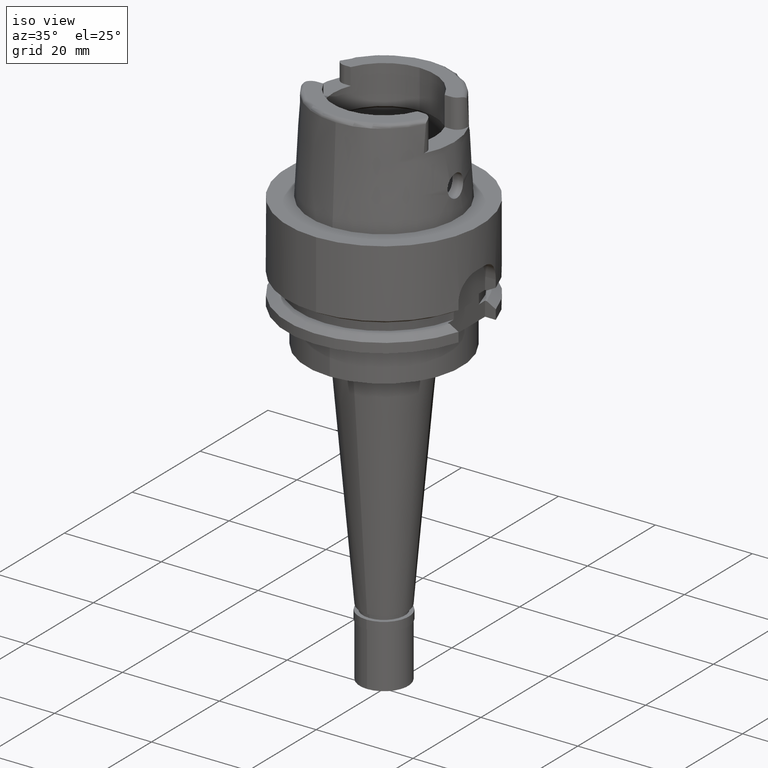
[diagram: clean part render]
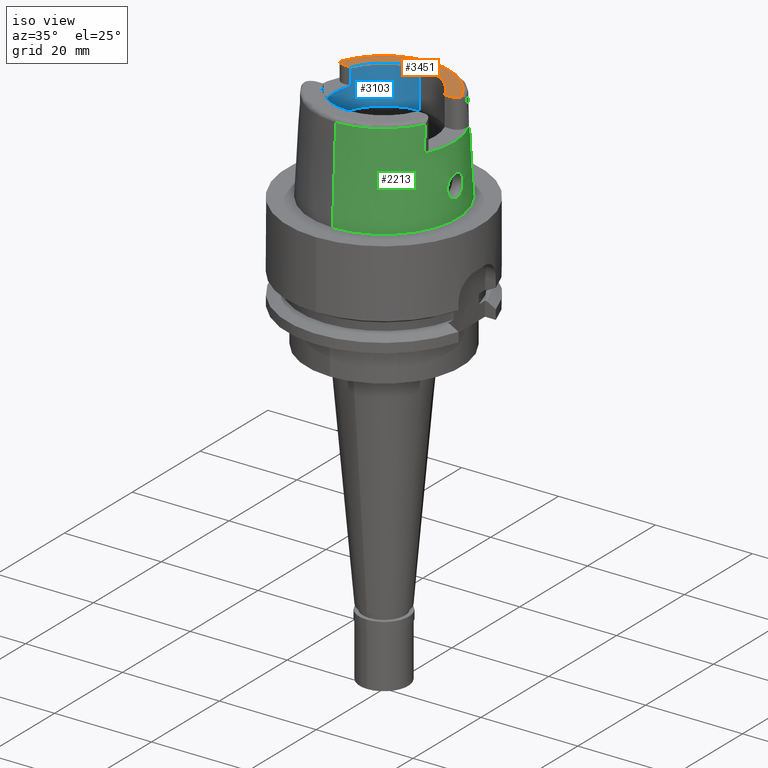
[diagram: same view with three faces highlighted in distinct colors, each labeled with its STEP entity id]
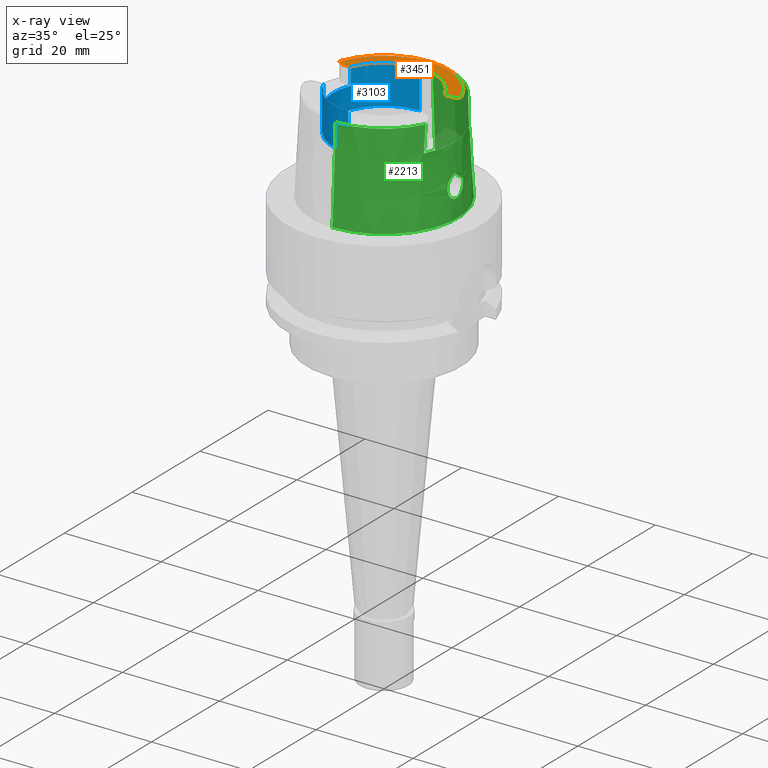
[diagram: x-ray of the same camera — body ghosted, the three highlighted faces saturated]
A machine part, iso view with three faces highlighted in distinct colors.
The next image is the same camera in x-ray (body ghosted, the three faces saturated) — at least one of them is partly hidden behind the body in this view.
Their STEP definitions:

[orange] entity #3451 — the highlighted planar face has unit normal (0, 0, -1).
#23 = CARTESIAN_POINT ( 'NONE',  ( 0.0000000000000000000, 1.534666136351999886E-14, 20.00000000000000000 ) ) ;
#116 = DIRECTION ( 'NONE',  ( 0.0000000000000000000, 0.0000000000000000000, -1.000000000000000000 ) ) ;
#144 = AXIS2_PLACEMENT_3D ( 'NONE', #2145, #5063, #1798 ) ;
#202 = DIRECTION ( 'NONE',  ( 0.0000000000000000000, 0.0000000000000000000, -1.000000000000000000 ) ) ;
#339 = CARTESIAN_POINT ( 'NONE',  ( 11.00000000000000000, 5.904999999999999361, 20.00000000000000000 ) ) ;
#360 = VERTEX_POINT ( 'NONE', #1189 ) ;
#384 = AXIS2_PLACEMENT_3D ( 'NONE', #3878, #202, #2545 ) ;
#473 = CARTESIAN_POINT ( 'NONE',  ( -11.00000000000000000, 4.025000000000000355, 20.00000000000000000 ) ) ;
#866 = DIRECTION ( 'NONE',  ( 1.000000000000000000, 1.841711261934000221E-14, 0.0000000000000000000 ) ) ;
#912 = PLANE ( 'NONE',  #2348 ) ;
#1094 = CIRCLE ( 'NONE', #4418, 10.50000000000000000 ) ;
#1097 = DIRECTION ( 'NONE',  ( 0.8199385816669358951, -0.5724515021327251096, 0.0000000000000000000 ) ) ;
#1166 = ORIENTED_EDGE ( 'NONE', *, *, #4449, .T. ) ;
#1189 = CARTESIAN_POINT ( 'NONE',  ( 11.00000000000000000, 4.025000000000000355, 20.00000000000000000 ) ) ;
#1206 = ORIENTED_EDGE ( 'NONE', *, *, #2247, .F. ) ;
#1355 = DIRECTION ( 'NONE',  ( 0.0000000000000000000, 0.0000000000000000000, 1.000000000000000000 ) ) ;
#1387 = DIRECTION ( 'NONE',  ( 1.000000000000000000, -1.909922790154000057E-14, 0.0000000000000000000 ) ) ;
#1476 = CARTESIAN_POINT ( 'NONE',  ( 0.0000000000000000000, 10.50000000000000000, 20.00000000000000000 ) ) ;
#1490 = CIRCLE ( 'NONE', #5168, 1.880000000000000115 ) ;
#1544 = EDGE_CURVE ( 'NONE', #1688, #2036, #4045, .T. ) ;
#1583 = ORIENTED_EDGE ( 'NONE', *, *, #2106, .F. ) ;
#1688 = VERTEX_POINT ( 'NONE', #2237 ) ;
#1706 = ORIENTED_EDGE ( 'NONE', *, *, #1829, .F. ) ;
#1781 = CARTESIAN_POINT ( 'NONE',  ( 0.0000000000000000000, 1.534666136351999886E-14, 20.00000000000000000 ) ) ;
#1798 = DIRECTION ( 'NONE',  ( 0.001485959642573941777, 0.9999988959613608230, 0.0000000000000000000 ) ) ;
#1829 = EDGE_CURVE ( 'NONE', #1688, #5190, #3029, .T. ) ;
#1862 = CARTESIAN_POINT ( 'NONE',  ( 12.54148453352999937, 4.828791175991000273, 20.00000000000000000 ) ) ;
#2008 = CIRCLE ( 'NONE', #2693, 10.49999999999999822 ) ;
#2023 = DIRECTION ( 'NONE',  ( 0.0000000000000000000, 0.0000000000000000000, -1.000000000000000000 ) ) ;
#2036 = VERTEX_POINT ( 'NONE', #4806 ) ;
#2106 = EDGE_CURVE ( 'NONE', #5191, #5174, #2008, .T. ) ;
#2145 = CARTESIAN_POINT ( 'NONE',  ( 0.0000000000000000000, 1.459778984583999657E-14, 20.00000000000000000 ) ) ;
#2165 = CARTESIAN_POINT ( 'NONE',  ( 9.697905701747998819, 4.025000000000000355, 20.00000000000000000 ) ) ;
#2237 = CARTESIAN_POINT ( 'NONE',  ( -11.00000000000000000, 4.025000000000000355, 20.00000000000000000 ) ) ;
#2247 = EDGE_CURVE ( 'NONE', #3603, #360, #1490, .T. ) ;
#2304 = ORIENTED_EDGE ( 'NONE', *, *, #1544, .T. ) ;
#2339 = CARTESIAN_POINT ( 'NONE',  ( -12.54148453352999937, 4.828791175990000184, 20.00000000000000000 ) ) ;
#2348 = AXIS2_PLACEMENT_3D ( 'NONE', #3282, #116, #3687 ) ;
#2539 = FACE_OUTER_BOUND ( 'NONE', #4590, .T. ) ;
#2545 = DIRECTION ( 'NONE',  ( 0.0000000000000000000, -1.000000000000000000, 0.0000000000000000000 ) ) ;
#2649 = LINE ( 'NONE', #2165, #4755 ) ;
#2693 = AXIS2_PLACEMENT_3D ( 'NONE', #1781, #1355, #3413 ) ;
#2815 = CARTESIAN_POINT ( 'NONE',  ( 9.697905701747998819, 4.025000000000000355, 20.00000000000000000 ) ) ;
#2869 = ORIENTED_EDGE ( 'NONE', *, *, #4192, .F. ) ;
#3029 = CIRCLE ( 'NONE', #384, 1.879999999999999671 ) ;
#3282 = CARTESIAN_POINT ( 'NONE',  ( 0.0000000000000000000, 1.469576158977000060E-14, 20.00000000000000000 ) ) ;
#3413 = DIRECTION ( 'NONE',  ( 0.9236100668331782559, 0.3833333333332911153, 0.0000000000000000000 ) ) ;
#3451 = ADVANCED_FACE ( 'NONE', ( #2539 ), #912, .F. ) ;
#3603 = VERTEX_POINT ( 'NONE', #1862 ) ;
#3687 = DIRECTION ( 'NONE',  ( 0.0000000000000000000, -1.000000000000000000, 0.0000000000000000000 ) ) ;
#3878 = CARTESIAN_POINT ( 'NONE',  ( -11.00000000000000000, 5.904999999999999361, 20.00000000000000000 ) ) ;
#4045 = LINE ( 'NONE', #473, #4477 ) ;
#4094 = EDGE_CURVE ( 'NONE', #5190, #3603, #4677, .T. ) ;
#4192 = EDGE_CURVE ( 'NONE', #5174, #2036, #1094, .T. ) ;
#4418 = AXIS2_PLACEMENT_3D ( 'NONE', #23, #4956, #4472 ) ;
#4449 = EDGE_CURVE ( 'NONE', #5191, #360, #2649, .T. ) ;
#4472 = DIRECTION ( 'NONE',  ( 0.0000000000000000000, 1.000000000000000000, 0.0000000000000000000 ) ) ;
#4477 = VECTOR ( 'NONE', #866, 1000.000000000000000 ) ;
#4590 = EDGE_LOOP ( 'NONE', ( #2869, #1583, #1166, #1206, #4620, #1706, #2304 ) ) ;
#4620 = ORIENTED_EDGE ( 'NONE', *, *, #4094, .F. ) ;
#4677 = CIRCLE ( 'NONE', #144, 13.43897535254000175 ) ;
#4755 = VECTOR ( 'NONE', #1387, 1000.000000000000000 ) ;
#4806 = CARTESIAN_POINT ( 'NONE',  ( -9.697905701747998819, 4.025000000000000355, 20.00000000000000000 ) ) ;
#4956 = DIRECTION ( 'NONE',  ( 0.0000000000000000000, 0.0000000000000000000, 1.000000000000000000 ) ) ;
#5063 = DIRECTION ( 'NONE',  ( 0.0000000000000000000, 0.0000000000000000000, -1.000000000000000000 ) ) ;
#5168 = AXIS2_PLACEMENT_3D ( 'NONE', #339, #2023, #1097 ) ;
#5174 = VERTEX_POINT ( 'NONE', #1476 ) ;
#5190 = VERTEX_POINT ( 'NONE', #2339 ) ;
#5191 = VERTEX_POINT ( 'NONE', #2815 ) ;

[blue] entity #3103 — the highlighted cylindrical surface (partial cylindrical patch) has radius 10.5 mm, axis along (0, 0, -1).
#23 = CARTESIAN_POINT ( 'NONE',  ( 0.0000000000000000000, 1.534666136351999886E-14, 20.00000000000000000 ) ) ;
#83 = DIRECTION ( 'NONE',  ( 0.0000000000000000000, -4.506013014787999900E-14, 1.000000000000000000 ) ) ;
#163 = DIRECTION ( 'NONE',  ( 0.0000000000000000000, 4.506013014787999900E-14, 1.000000000000000000 ) ) ;
#204 = ORIENTED_EDGE ( 'NONE', *, *, #4285, .F. ) ;
#228 = CIRCLE ( 'NONE', #1686, 10.50000000000000000 ) ;
#231 = VERTEX_POINT ( 'NONE', #3107 ) ;
#454 = LINE ( 'NONE', #4880, #3873 ) ;
#555 = CIRCLE ( 'NONE', #3547, 10.49999999999999822 ) ;
#584 = DIRECTION ( 'NONE',  ( -0.9236100668331782559, 0.3833333333332911153, 0.0000000000000000000 ) ) ;
#670 = CARTESIAN_POINT ( 'NONE',  ( 0.0000000000000000000, 1.534666136351999886E-14, 25.31500000000000128 ) ) ;
#721 = DIRECTION ( 'NONE',  ( 0.0000000000000000000, 0.0000000000000000000, 1.000000000000000000 ) ) ;
#805 = AXIS2_PLACEMENT_3D ( 'NONE', #670, #2300, #5046 ) ;
#821 = LINE ( 'NONE', #4524, #4086 ) ;
#993 = CARTESIAN_POINT ( 'NONE',  ( 0.0000000000000000000, 1.534666136351999886E-14, 16.50000000000000000 ) ) ;
#1025 = ORIENTED_EDGE ( 'NONE', *, *, #2250, .T. ) ;
#1040 = DIRECTION ( 'NONE',  ( 0.0000000000000000000, -1.000000000000000000, 0.0000000000000000000 ) ) ;
#1094 = CIRCLE ( 'NONE', #4418, 10.50000000000000000 ) ;
#1095 = DIRECTION ( 'NONE',  ( 0.0000000000000000000, 0.0000000000000000000, -1.000000000000000000 ) ) ;
#1101 = EDGE_CURVE ( 'NONE', #4645, #2036, #454, .T. ) ;
#1147 = CARTESIAN_POINT ( 'NONE',  ( 0.0000000000000000000, 10.50000000000000000, 11.99735026918999914 ) ) ;
#1476 = CARTESIAN_POINT ( 'NONE',  ( 0.0000000000000000000, 10.50000000000000000, 20.00000000000000000 ) ) ;
#1534 = ORIENTED_EDGE ( 'NONE', *, *, #4192, .T. ) ;
#1618 = ORIENTED_EDGE ( 'NONE', *, *, #3928, .T. ) ;
#1620 = DIRECTION ( 'NONE',  ( 0.0000000000000000000, 0.0000000000000000000, -1.000000000000000000 ) ) ;
#1673 = VERTEX_POINT ( 'NONE', #4678 ) ;
#1686 = AXIS2_PLACEMENT_3D ( 'NONE', #4750, #1095, #1040 ) ;
#1773 = CARTESIAN_POINT ( 'NONE',  ( 0.0000000000000000000, 10.50000000000000000, 11.99735026918999914 ) ) ;
#2036 = VERTEX_POINT ( 'NONE', #4806 ) ;
#2250 = EDGE_CURVE ( 'NONE', #3851, #4281, #555, .T. ) ;
#2300 = DIRECTION ( 'NONE',  ( 0.0000000000000000000, 0.0000000000000000000, -1.000000000000000000 ) ) ;
#2723 = DIRECTION ( 'NONE',  ( -0.9236100668331782559, -0.3833333333332911153, 0.0000000000000000000 ) ) ;
#2890 = CARTESIAN_POINT ( 'NONE',  ( 0.0000000000000000000, -10.50000000000000000, 20.00000000000000000 ) ) ;
#3016 = AXIS2_PLACEMENT_3D ( 'NONE', #993, #4255, #584 ) ;
#3103 = ADVANCED_FACE ( 'NONE', ( #3933 ), #3820, .F. ) ;
#3107 = CARTESIAN_POINT ( 'NONE',  ( 0.0000000000000000000, -10.50000000000000000, 11.99735026918999914 ) ) ;
#3167 = EDGE_CURVE ( 'NONE', #4645, #1673, #3355, .T. ) ;
#3347 = VERTEX_POINT ( 'NONE', #1147 ) ;
#3355 = CIRCLE ( 'NONE', #3016, 10.49999999999999822 ) ;
#3393 = VECTOR ( 'NONE', #83, 1000.000000000000000 ) ;
#3485 = ORIENTED_EDGE ( 'NONE', *, *, #4837, .T. ) ;
#3490 = LINE ( 'NONE', #1773, #4173 ) ;
#3547 = AXIS2_PLACEMENT_3D ( 'NONE', #4037, #721, #2723 ) ;
#3679 = DIRECTION ( 'NONE',  ( 0.0000000000000000000, 0.0000000000000000000, 1.000000000000000000 ) ) ;
#3735 = CARTESIAN_POINT ( 'NONE',  ( 0.0000000000000000000, -10.50000000000000000, 11.99735026918999914 ) ) ;
#3766 = ORIENTED_EDGE ( 'NONE', *, *, #5064, .F. ) ;
#3820 = CYLINDRICAL_SURFACE ( 'NONE', #805, 10.50000000000000000 ) ;
#3851 = VERTEX_POINT ( 'NONE', #4144 ) ;
#3873 = VECTOR ( 'NONE', #3679, 1000.000000000000000 ) ;
#3928 = EDGE_CURVE ( 'NONE', #3347, #5174, #3490, .T. ) ;
#3933 = FACE_OUTER_BOUND ( 'NONE', #5242, .T. ) ;
#4037 = CARTESIAN_POINT ( 'NONE',  ( 0.0000000000000000000, 1.534666136351999886E-14, 20.00000000000000000 ) ) ;
#4086 = VECTOR ( 'NONE', #1620, 1000.000000000000000 ) ;
#4144 = CARTESIAN_POINT ( 'NONE',  ( -9.697905701747998819, -4.025000000000000355, 20.00000000000000000 ) ) ;
#4173 = VECTOR ( 'NONE', #163, 1000.000000000000000 ) ;
#4192 = EDGE_CURVE ( 'NONE', #5174, #2036, #1094, .T. ) ;
#4255 = DIRECTION ( 'NONE',  ( 0.0000000000000000000, 0.0000000000000000000, 1.000000000000000000 ) ) ;
#4281 = VERTEX_POINT ( 'NONE', #2890 ) ;
#4285 = EDGE_CURVE ( 'NONE', #3851, #1673, #821, .T. ) ;
#4418 = AXIS2_PLACEMENT_3D ( 'NONE', #23, #4956, #4472 ) ;
#4472 = DIRECTION ( 'NONE',  ( 0.0000000000000000000, 1.000000000000000000, 0.0000000000000000000 ) ) ;
#4524 = CARTESIAN_POINT ( 'NONE',  ( -9.697905701747998819, -4.025000000000000355, 20.00000000000000000 ) ) ;
#4645 = VERTEX_POINT ( 'NONE', #5117 ) ;
#4678 = CARTESIAN_POINT ( 'NONE',  ( -9.697905701747998819, -4.025000000000000355, 16.50000000000000000 ) ) ;
#4750 = CARTESIAN_POINT ( 'NONE',  ( 0.0000000000000000000, 1.363617650911000050E-14, 11.99735026918999914 ) ) ;
#4806 = CARTESIAN_POINT ( 'NONE',  ( -9.697905701747998819, 4.025000000000000355, 20.00000000000000000 ) ) ;
#4837 = EDGE_CURVE ( 'NONE', #231, #3347, #228, .T. ) ;
#4880 = CARTESIAN_POINT ( 'NONE',  ( -9.697905701747998819, 4.025000000000000355, 16.50000000000000000 ) ) ;
#4883 = ORIENTED_EDGE ( 'NONE', *, *, #3167, .T. ) ;
#4956 = DIRECTION ( 'NONE',  ( 0.0000000000000000000, 0.0000000000000000000, 1.000000000000000000 ) ) ;
#5015 = LINE ( 'NONE', #3735, #3393 ) ;
#5046 = DIRECTION ( 'NONE',  ( 0.0000000000000000000, -1.000000000000000000, 0.0000000000000000000 ) ) ;
#5064 = EDGE_CURVE ( 'NONE', #231, #4281, #5015, .T. ) ;
#5085 = ORIENTED_EDGE ( 'NONE', *, *, #1101, .F. ) ;
#5117 = CARTESIAN_POINT ( 'NONE',  ( -9.697905701747998819, 4.025000000000000355, 16.50000000000000000 ) ) ;
#5174 = VERTEX_POINT ( 'NONE', #1476 ) ;
#5242 = EDGE_LOOP ( 'NONE', ( #204, #1025, #3766, #3485, #1618, #1534, #5085, #4883 ) ) ;

[green] entity #2213 — the highlighted conical surface has half-angle 2.862 deg.
#26 = CARTESIAN_POINT ( 'NONE',  ( 14.74500096431711604, 1.354382637808143386, 7.859010048358251233 ) ) ;
#42 = CARTESIAN_POINT ( 'NONE',  ( 14.70330640099693831, -2.122551103620506918, 6.885928702433627535 ) ) ;
#58 = CARTESIAN_POINT ( 'NONE',  ( 14.70880505074079636, 2.286023167686234814, 6.294428760193050643 ) ) ;
#67 = CARTESIAN_POINT ( 'NONE',  ( 14.71466562909622589, -2.295559344048705430, 6.147463848056866631 ) ) ;
#79 = CARTESIAN_POINT ( 'NONE',  ( 14.76241512546260282, 1.004072160072282838, 8.069547164341443590 ) ) ;
#89 = CARTESIAN_POINT ( 'NONE',  ( 14.78756614916703604, -2.142037437994415594, 5.162277999831491826 ) ) ;
#94 = ORIENTED_EDGE ( 'NONE', *, *, #2778, .F. ) ;
#123 = CARTESIAN_POINT ( 'NONE',  ( 14.75634271134894604, -1.135899380109776091, 8.000353389937572501 ) ) ;
#154 = EDGE_LOOP ( 'NONE', ( #4179, #318, #1567, #2328, #4784, #3719, #1412, #3981 ) ) ;
#165 = CARTESIAN_POINT ( 'NONE',  ( 12.88000000001000167, -6.659963896840999986, 14.00000000000000000 ) ) ;
#178 = CARTESIAN_POINT ( 'NONE',  ( 0.0000000000000000000, 1.342457523729000028E-14, 14.00000000000000000 ) ) ;
#180 = CARTESIAN_POINT ( 'NONE',  ( 15.01500049747999910, 0.0000000000000000000, 3.700000000000000178 ) ) ;
#197 = EDGE_CURVE ( 'NONE', #2548, #1696, #641, .T. ) ;
#229 = CARTESIAN_POINT ( 'NONE',  ( 0.0000000000000000000, -15.20000663301000010, 1.136868377215999875E-13 ) ) ;
#252 = CARTESIAN_POINT ( 'NONE',  ( 14.97631679569868446, -0.9302403002569823443, 3.896398779045271432 ) ) ;
#268 = CARTESIAN_POINT ( 'NONE',  ( 14.80062999637028476, 2.092185891519113383, 5.044420636153067683 ) ) ;
#305 = CARTESIAN_POINT ( 'NONE',  ( 14.98243579277761661, 0.8543286856493433890, 3.864533699270391143 ) ) ;
#315 = DIRECTION ( 'NONE',  ( 0.0000000000000000000, -1.000000000000000000, 0.0000000000000000000 ) ) ;
#316 = VERTEX_POINT ( 'NONE', #4873 ) ;
#318 = ORIENTED_EDGE ( 'NONE', *, *, #197, .T. ) ;
#349 = CARTESIAN_POINT ( 'NONE',  ( 14.77916108253695349, -0.5059821365907526403, 8.244918242201062952 ) ) ;
#386 = CARTESIAN_POINT ( 'NONE',  ( 14.76714121855628470, 0.8900451975714428476, 8.120810014513974551 ) ) ;
#406 = CARTESIAN_POINT ( 'NONE',  ( 14.75286376759468610, 1.207578105647577171, 7.959491169654726583 ) ) ;
#430 = CARTESIAN_POINT ( 'NONE',  ( 14.74812513313521478, 1.296584635102419725, 7.899707791083855568 ) ) ;
#440 = CARTESIAN_POINT ( 'NONE',  ( 14.70919314695223434, -1.970699085231738978, 7.188281518314505014 ) ) ;
#455 = CARTESIAN_POINT ( 'NONE',  ( 14.74613056921478105, 1.333675036801860392, 7.873995569354927504 ) ) ;
#467 = CARTESIAN_POINT ( 'NONE',  ( 14.76525791473411786, -0.9385387104519321566, 8.100721495803417938 ) ) ;
#484 = CARTESIAN_POINT ( 'NONE',  ( 14.73565081257533294, 1.519584829041848995, 7.726927374567316598 ) ) ;
#497 = CARTESIAN_POINT ( 'NONE',  ( 14.80542314392414838, -2.073773341573239559, 5.002427211079091940 ) ) ;
#522 = CARTESIAN_POINT ( 'NONE',  ( 14.84928386707846393, -1.872853946676778181, 4.662785539079989938 ) ) ;
#559 = CARTESIAN_POINT ( 'NONE',  ( 14.88821001435300140, -1.654245681070664720, 4.402013557403384070 ) ) ;
#641 = CIRCLE ( 'NONE', #2769, 14.23797715756000315 ) ;
#654 = CARTESIAN_POINT ( 'NONE',  ( 14.77733864910474182, -0.5807203118240377160, 8.226855804765103031 ) ) ;
#661 = CARTESIAN_POINT ( 'NONE',  ( 14.81278920029222590, 2.041972094162027407, 4.940854148587280115 ) ) ;
#665 = AXIS2_PLACEMENT_3D ( 'NONE', #178, #1956, #2782 ) ;
#690 = CARTESIAN_POINT ( 'NONE',  ( 14.98158121278657973, 0.8653313639756003983, 3.868977115726220717 ) ) ;
#765 = VERTEX_POINT ( 'NONE', #3007 ) ;
#771 = CARTESIAN_POINT ( 'NONE',  ( 14.89899223594661848, 1.586722728874496280, 4.334937108691366170 ) ) ;
#794 = CARTESIAN_POINT ( 'NONE',  ( 14.76724015720223804, 0.8875285611430467902, 8.121866846991439459 ) ) ;
#818 = EDGE_CURVE ( 'NONE', #2133, #2548, #3489, .T. ) ;
#825 = CARTESIAN_POINT ( 'NONE',  ( 14.72899568999438813, 1.629097892376311307, 7.623588640133171168 ) ) ;
#837 = ORIENTED_EDGE ( 'NONE', *, *, #2986, .F. ) ;
#848 = CARTESIAN_POINT ( 'NONE',  ( 0.0000000000000000000, 15.20000663301000010, 0.0000000000000000000 ) ) ;
#851 = CARTESIAN_POINT ( 'NONE',  ( 14.70317989464932573, 2.128146396121253225, 6.872382697148475827 ) ) ;
#862 = CARTESIAN_POINT ( 'NONE',  ( 14.76161234709330117, -2.228429473507740344, 5.425355868372570001 ) ) ;
#875 = CARTESIAN_POINT ( 'NONE',  ( 14.78499286951999991, -6.884507511411997731E-14, 8.300000000000000711 ) ) ;
#880 = CARTESIAN_POINT ( 'NONE',  ( 12.87999235482999794, -6.068467379707000120, 19.23976291994999954 ) ) ;
#885 = CARTESIAN_POINT ( 'NONE',  ( 14.75237196097234893, -1.215615432302187271, 7.952710625382086285 ) ) ;
#914 = CARTESIAN_POINT ( 'NONE',  ( 14.77220140295338346, -2.195301184873924338, 5.312845609201180430 ) ) ;
#936 = CARTESIAN_POINT ( 'NONE',  ( 14.71323667652579381, -2.292916343129912882, 6.184101908701144623 ) ) ;
#959 = CARTESIAN_POINT ( 'NONE',  ( 14.83823846060481522, -1.926727980596180556, 4.743881358692857653 ) ) ;
#1060 = DIRECTION ( 'NONE',  ( 0.0000000000000000000, 0.0000000000000000000, -1.000000000000000000 ) ) ;
#1090 = CARTESIAN_POINT ( 'NONE',  ( 14.93085825594933524, 1.360629611842601561, 4.143798563572180349 ) ) ;
#1114 = EDGE_CURVE ( 'NONE', #4528, #4296, #4548, .T. ) ;
#1139 = CARTESIAN_POINT ( 'NONE',  ( 14.89650975658435961, 1.602735441836006025, 4.350344716668742784 ) ) ;
#1172 = CARTESIAN_POINT ( 'NONE',  ( 14.93882520186123131, 1.296088672652107032, 4.098476733274834416 ) ) ;
#1191 = CARTESIAN_POINT ( 'NONE',  ( 14.73486355486386756, -1.533063810960609619, 7.715286704294013198 ) ) ;
#1198 = CARTESIAN_POINT ( 'NONE',  ( 14.85071942679497781, 1.866337755887430783, 4.653799170384782080 ) ) ;
#1219 = CARTESIAN_POINT ( 'NONE',  ( 14.70255776435528361, 2.173680557048796036, 6.753459211661142270 ) ) ;
#1249 = CARTESIAN_POINT ( 'NONE',  ( 14.72899035727821193, 1.629186609678512365, 7.623499612210602017 ) ) ;
#1272 = CARTESIAN_POINT ( 'NONE',  ( 14.70308790430606471, 2.132559960466688942, 6.861557514146462644 ) ) ;
#1283 = CARTESIAN_POINT ( 'NONE',  ( 14.76786057148117770, -0.8715846338606199062, 8.128465607089310652 ) ) ;
#1295 = CARTESIAN_POINT ( 'NONE',  ( 14.70696989044929737, 2.017200920685000565, 7.115077770892558995 ) ) ;
#1307 = CARTESIAN_POINT ( 'NONE',  ( 14.73194453387005609, -1.581397157409437204, 7.670271292573164423 ) ) ;
#1321 = CARTESIAN_POINT ( 'NONE',  ( 14.74146912232641782, 1.418216001138131066, 7.810927695712688745 ) ) ;
#1327 = AXIS2_PLACEMENT_3D ( 'NONE', #4410, #4752, #1948 ) ;
#1335 = CARTESIAN_POINT ( 'NONE',  ( 14.83223049921008396, -1.955432229127118671, 4.788775612879136112 ) ) ;
#1336 = VERTEX_POINT ( 'NONE', #180 ) ;
#1356 = CARTESIAN_POINT ( 'NONE',  ( 14.87735685451329459, -1.718926800524323006, 4.471014800071670514 ) ) ;
#1412 = ORIENTED_EDGE ( 'NONE', *, *, #3571, .T. ) ;
#1510 = CARTESIAN_POINT ( 'NONE',  ( 14.79475187274839065, 2.115203342875368708, 5.096485506119619480 ) ) ;
#1548 = B_SPLINE_CURVE_WITH_KNOTS ( 'NONE', 3,
 ( #1968, #4797, #2817, #3948, #4351, #2398, #5179, #3980, #2292, #305, #690, #3601, #5231, #1172, #1090, #5150, #2794, #1942, #4431, #771, #1139, #4032, #1598, #3578, #2716, #1198, #3227, #1990, #661, #2315, #268, #1911, #1510, #2838, #4958, #2066, #2018, #1643, #4131, #4527, #1622, #4475, #58, #3680, #3299, #3252, #1219, #4503, #1671, #1272, #851, #3346, #1295, #3272, #2940, #1695, #2893, #4904, #4981, #4159, #2421, #4881, #1717, #1249, #2868, #825, #2917, #484, #2449, #1321, #4082, #26, #455, #4055, #430, #2121, #2096, #406, #4549, #3756, #79, #2044, #2478, #4454, #4109, #386, #794, #3701, #4933, #875 ),
 .UNSPECIFIED., .F., .F.,
 ( 4, 2, 2, 1, 1, 2, 2, 2, 2, 2, 1, 2, 2, 2, 2, 2, 1, 2, 2, 2, 2, 2, 2, 2, 2, 1, 1, 2, 2, 2, 2, 1, 1, 1, 1, 1, 2, 3, 2, 2, 2, 1, 1, 2, 2, 2, 2, 1, 1, 2, 2, 4 ),
 ( 0.0000000000000000000, 0.04999999999999823336, 0.07499999999999734657, 0.08749999999999687195, 0.09374999999999661382, 0.09687499999999650557, 0.09999999999999638345, 0.1499999999999932776, 0.1749999999999916345, 0.1874999999999908129, 0.1937499999999903466, 0.1968749999999900302, 0.1999999999999896860, 0.2249999999999869327, 0.2499999999999842071, 0.2749999999999814260, 0.2874999999999800493, 0.2937499999999794720, 0.2999999999999788947, 0.3499999999999757194, 0.3749999999999741318, 0.3874999999999733657, 0.3999999999999725442, 0.4499999999999690914, 0.4749999999999675038, 0.4874999999999666822, 0.4937499999999663269, 0.4968749999999659273, 0.4999999999999655276, 0.5499999999999587441, 0.5749999999999553246, 0.5874999999999537259, 0.5937499999999529265, 0.5968749999999523048, 0.5984374999999521050, 0.5992187499999519495, 0.5996093749999517053, 0.5999999999999515721, 0.6499999999999497291, 0.6749999999999491962, 0.6874999999999488187, 0.6937499999999486855, 0.6968749999999485079, 0.6984374999999486411, 0.6999999999999487743, 0.7499999999999534817, 0.7749999999999558353, 0.7874999999999570122, 0.7937499999999575451, 0.7968749999999578115, 0.7999999999999580780, 1.000000000000000000 ),
 .UNSPECIFIED. ) ;
#1567 = ORIENTED_EDGE ( 'NONE', *, *, #3884, .T. ) ;
#1591 = CARTESIAN_POINT ( 'NONE',  ( 14.75372169231068575, -1.188830184852810889, 7.969036074625081234 ) ) ;
#1598 = CARTESIAN_POINT ( 'NONE',  ( 14.88547845153190075, 1.672448345869598674, 4.419291267788579169 ) ) ;
#1622 = CARTESIAN_POINT ( 'NONE',  ( 14.72322035710170596, 2.300009956714349268, 5.964199149871957317 ) ) ;
#1643 = CARTESIAN_POINT ( 'NONE',  ( 14.73133886408813531, 2.293597955873995176, 5.824731632944589066 ) ) ;
#1671 = CARTESIAN_POINT ( 'NONE',  ( 14.70295563036023445, 2.139722423474954560, 6.843612046883148281 ) ) ;
#1682 = CARTESIAN_POINT ( 'NONE',  ( 14.79810665353050325, -2.102674614823285992, 5.065755760946411002 ) ) ;
#1693 = CARTESIAN_POINT ( 'NONE',  ( 12.88000642478999858, 6.068395837171999929, 19.23995141520000018 ) ) ;
#1695 = CARTESIAN_POINT ( 'NONE',  ( 14.72038869746218026, 1.773863879972754409, 7.464609924023707599 ) ) ;
#1696 = VERTEX_POINT ( 'NONE', #2214 ) ;
#1704 = LINE ( 'NONE', #3333, #3666 ) ;
#1705 = CARTESIAN_POINT ( 'NONE',  ( 14.72153730601653621, -1.748229405452686569, 7.504125723296347417 ) ) ;
#1717 = CARTESIAN_POINT ( 'NONE',  ( 14.72887289683894885, 1.631140895576381533, 7.621536708197190535 ) ) ;
#1728 = CARTESIAN_POINT ( 'NONE',  ( 14.81768549512467992, -2.021421350660407068, 4.902148662865470463 ) ) ;
#1755 = CARTESIAN_POINT ( 'NONE',  ( 14.70379873878731125, -2.103473923935722301, 6.930530933648523906 ) ) ;
#1879 = CARTESIAN_POINT ( 'NONE',  ( 14.77228139633038495, -0.7495699563090335582, 8.175070586196943268 ) ) ;
#1887 = VERTEX_POINT ( 'NONE', #229 ) ;
#1893 = EDGE_CURVE ( 'NONE', #1887, #4296, #4145, .T. ) ;
#1895 = CARTESIAN_POINT ( 'NONE',  ( 14.91234266903851768, -1.506178942144753563, 4.253282322901964285 ) ) ;
#1911 = CARTESIAN_POINT ( 'NONE',  ( 14.79662771912136954, 2.107952846537308300, 5.079723670815668335 ) ) ;
#1942 = CARTESIAN_POINT ( 'NONE',  ( 14.90627237532283189, 1.538492220973616043, 4.290173904350843337 ) ) ;
#1948 = DIRECTION ( 'NONE',  ( 0.0000000000000000000, -1.000000000000000000, 0.0000000000000000000 ) ) ;
#1956 = DIRECTION ( 'NONE',  ( 0.0000000000000000000, 0.0000000000000000000, -1.000000000000000000 ) ) ;
#1957 = CARTESIAN_POINT ( 'NONE',  ( 0.0000000000000000000, 1.459778984583999657E-14, 19.23995141520000018 ) ) ;
#1968 = CARTESIAN_POINT ( 'NONE',  ( 15.01500049747999910, 0.0000000000000000000, 3.700000000000000178 ) ) ;
#1990 = CARTESIAN_POINT ( 'NONE',  ( 14.82516172525944498, 1.987895855562358705, 4.840676947937756047 ) ) ;
#2018 = CARTESIAN_POINT ( 'NONE',  ( 14.73841581497309505, 2.283619560548791227, 5.716585043800614940 ) ) ;
#2044 = CARTESIAN_POINT ( 'NONE',  ( 14.76441079497202047, 0.9572560752889258673, 8.091400822018327332 ) ) ;
#2066 = CARTESIAN_POINT ( 'NONE',  ( 14.74374475864755141, 2.273408937109300254, 5.643146912120913683 ) ) ;
#2078 = CARTESIAN_POINT ( 'NONE',  ( 14.70541209297421581, -2.056178390764034969, 7.031201060470824160 ) ) ;
#2096 = CARTESIAN_POINT ( 'NONE',  ( 14.74882556115926846, 1.283462059156507573, 7.908594459080882544 ) ) ;
#2107 = CARTESIAN_POINT ( 'NONE',  ( 14.75001128025408725, -1.261054710730199035, 7.923501770573758485 ) ) ;
#2121 = CARTESIAN_POINT ( 'NONE',  ( 14.74853409972168095, 1.288931031951029871, 7.904908974823213974 ) ) ;
#2129 = CARTESIAN_POINT ( 'NONE',  ( 14.70337028550373581, -2.119891799106476959, 6.892259917717216133 ) ) ;
#2133 = VERTEX_POINT ( 'NONE', #5134 ) ;
#2152 = CARTESIAN_POINT ( 'NONE',  ( 14.73736542374625458, -1.490229507122191821, 7.752324253657932651 ) ) ;
#2186 = CARTESIAN_POINT ( 'NONE',  ( 14.89132166421977743, -1.635322711086946601, 4.382645602713922450 ) ) ;
#2213 = ADVANCED_FACE ( 'NONE', ( #4865, #2748 ), #2434, .T. ) ;
#2214 = CARTESIAN_POINT ( 'NONE',  ( 0.0000000000000000000, -14.23797715755999782, 19.23995141520000018 ) ) ;
#2269 = CARTESIAN_POINT ( 'NONE',  ( 15.01500049748000620, -0.2871327510625960588, 3.699999999999999734 ) ) ;
#2281 = CARTESIAN_POINT ( 'NONE',  ( 14.77405826892678498, -0.6932222171486369655, 8.193393186730734357 ) ) ;
#2292 = CARTESIAN_POINT ( 'NONE',  ( 14.98380693823877330, 0.8363119203055955353, 3.857413666469914126 ) ) ;
#2315 = CARTESIAN_POINT ( 'NONE',  ( 14.80666388667869171, 2.067940916732971424, 4.991927881242446574 ) ) ;
#2328 = ORIENTED_EDGE ( 'NONE', *, *, #1893, .T. ) ;
#2363 = CARTESIAN_POINT ( 'NONE',  ( 0.0000000000000000000, 14.23797715755999782, 19.23995141520000018 ) ) ;
#2390 = CARTESIAN_POINT ( 'NONE',  ( 14.78499286951999991, -6.884507511411997731E-14, 8.300000000000000711 ) ) ;
#2398 = CARTESIAN_POINT ( 'NONE',  ( 14.99376985808149776, 0.6912946720758984531, 3.806017244578830283 ) ) ;
#2421 = CARTESIAN_POINT ( 'NONE',  ( 14.72858007828354765, 1.636014502974074247, 7.616623004599803792 ) ) ;
#2434 = CONICAL_SURFACE ( 'NONE', #1327, 14.71899189528999941, 0.04996004983832824653 ) ;
#2445 = B_SPLINE_CURVE_WITH_KNOTS ( 'NONE', 3,
 ( #2390, #2679, #4025, #349, #654, #2281, #1879, #3513, #2708, #3110, #1283, #2960, #467, #4516, #3387, #123, #1591, #885, #2513, #2107, #3765, #5023, #3358, #2152, #1191, #1307, #4119, #4221, #4172, #1705, #2585, #440, #4946, #2078, #4968, #1755, #4998, #2129, #42, #2904, #4146, #4850, #3744, #936, #67, #3334, #4614, #2881, #3311, #3716, #862, #914, #2541, #4588, #89, #2490, #2562, #1682, #497, #1728, #4538, #2930, #1335, #2989, #959, #4194, #522, #4563, #3795, #1356, #5252, #559, #3217, #2186, #1895, #5156, #3526, #4673, #2642, #4644, #252, #3414, #4330, #4278, #3501, #2269, #4300 ),
 .UNSPECIFIED., .F., .F.,
 ( 4, 2, 2, 1, 1, 1, 2, 2, 2, 2, 1, 2, 2, 2, 1, 1, 2, 2, 2, 2, 1, 1, 2, 2, 2, 2, 2, 2, 2, 2, 1, 1, 2, 2, 2, 2, 1, 2, 2, 2, 1, 1, 2, 2, 2, 2, 1, 1, 2, 2, 4 ),
 ( 0.0000000000000000000, 0.06249999999999437950, 0.09374999999999153455, 0.1093749999999899802, 0.1171874999999891059, 0.1210937499999886202, 0.1230468749999884814, 0.1249999999999883288, 0.1562499999999850675, 0.1718749999999832634, 0.1796874999999823752, 0.1835937499999818756, 0.1874999999999814038, 0.2187499999999788225, 0.2343749999999775457, 0.2421874999999768796, 0.2460937499999764633, 0.2499999999999760192, 0.3124999999999683031, 0.3437499999999644174, 0.3593749999999626410, 0.3671874999999617528, 0.3710937499999615308, 0.3749999999999613087, 0.4374999999999607536, 0.4687499999999605316, 0.4843749999999605316, 0.4999999999999605871, 0.5624999999999609201, 0.5937499999999610312, 0.6093749999999610312, 0.6171874999999610312, 0.6210937499999611422, 0.6249999999999612532, 0.6562499999999632516, 0.6718749999999645839, 0.6796874999999652500, 0.6835937499999655831, 0.6874999999999659162, 0.7187499999999682476, 0.7343749999999694689, 0.7421874999999701350, 0.7460937499999704681, 0.7499999999999706901, 0.8124999999999772404, 0.8437499999999804601, 0.8593749999999820144, 0.8671874999999829026, 0.8710937499999832356, 0.8749999999999836797, 1.000000000000000000 ),
 .UNSPECIFIED. ) ;
#2449 = CARTESIAN_POINT ( 'NONE',  ( 14.73772906162970564, 1.484197863644269200, 7.757936199492958096 ) ) ;
#2478 = CARTESIAN_POINT ( 'NONE',  ( 14.76536941273097980, 0.9342837949237392525, 8.101804210053995092 ) ) ;
#2490 = CARTESIAN_POINT ( 'NONE',  ( 14.78959330866657140, -2.134578240044442854, 5.143449784037867012 ) ) ;
#2513 = CARTESIAN_POINT ( 'NONE',  ( 14.75096339690523095, -1.242826186513118492, 7.935329717379561387 ) ) ;
#2541 = CARTESIAN_POINT ( 'NONE',  ( 14.77772077390300254, -2.177131790706709147, 5.256433042188803029 ) ) ;
#2548 = VERTEX_POINT ( 'NONE', #880 ) ;
#2562 = CARTESIAN_POINT ( 'NONE',  ( 14.79084131354518838, -2.129932834722690238, 5.131985342807023009 ) ) ;
#2585 = CARTESIAN_POINT ( 'NONE',  ( 14.71564323216915859, -1.847809500584492337, 7.377777723275364075 ) ) ;
#2642 = CARTESIAN_POINT ( 'NONE',  ( 14.96739810545433436, -1.030599217019676717, 3.943520043470576830 ) ) ;
#2650 = EDGE_CURVE ( 'NONE', #4528, #4233, #2926, .T. ) ;
#2659 = CARTESIAN_POINT ( 'NONE',  ( 12.87999235482999794, -6.068467379707000120, 19.23976291994999954 ) ) ;
#2679 = CARTESIAN_POINT ( 'NONE',  ( 14.78499286951999991, -0.1390341784445931206, 8.300000000000002487 ) ) ;
#2690 = DIRECTION ( 'NONE',  ( 0.0000000000000000000, 1.000000000000000000, 0.0000000000000000000 ) ) ;
#2708 = CARTESIAN_POINT ( 'NONE',  ( 14.76875327910774871, -0.8481424277540661194, 8.137950662866597185 ) ) ;
#2716 = CARTESIAN_POINT ( 'NONE',  ( 14.85961751801468189, 1.820042557328305000, 4.591749789563757567 ) ) ;
#2748 = FACE_BOUND ( 'NONE', #5030, .T. ) ;
#2769 = AXIS2_PLACEMENT_3D ( 'NONE', #1957, #2783, #3538 ) ;
#2778 = EDGE_CURVE ( 'NONE', #1336, #765, #1548, .T. ) ;
#2782 = DIRECTION ( 'NONE',  ( 0.8882768779220027167, 0.4593083802296007434, 0.0000000000000000000 ) ) ;
#2783 = DIRECTION ( 'NONE',  ( 0.0000000000000000000, 0.0000000000000000000, -1.000000000000000000 ) ) ;
#2794 = CARTESIAN_POINT ( 'NONE',  ( 14.91331829650427210, 1.490072994443908394, 4.247419948571351078 ) ) ;
#2817 = CARTESIAN_POINT ( 'NONE',  ( 15.01216974556020922, 0.2889072941561502961, 3.713349905733302592 ) ) ;
#2838 = CARTESIAN_POINT ( 'NONE',  ( 14.77588826478031514, 2.186440970393538130, 5.267478523031702942 ) ) ;
#2868 = CARTESIAN_POINT ( 'NONE',  ( 14.72899043931999863, 1.629185244796940379, 7.623500981870948934 ) ) ;
#2881 = CARTESIAN_POINT ( 'NONE',  ( 14.72824984443655794, -2.300097106479395581, 5.864574472763056434 ) ) ;
#2893 = CARTESIAN_POINT ( 'NONE',  ( 14.72275670986040730, 1.733538010544704022, 7.512629189201797786 ) ) ;
#2904 = CARTESIAN_POINT ( 'NONE',  ( 14.70192353659807694, -2.185015068577591979, 6.734492742535526766 ) ) ;
#2917 = CARTESIAN_POINT ( 'NONE',  ( 14.73066143964251218, 1.603109893869284486, 7.650970474271079347 ) ) ;
#2926 = CIRCLE ( 'NONE', #3101, 14.23797715755999782 ) ;
#2930 = CARTESIAN_POINT ( 'NONE',  ( 14.82876253153181700, -1.971529614228086924, 4.815312702882825313 ) ) ;
#2940 = CARTESIAN_POINT ( 'NONE',  ( 14.71595625860732603, 1.850346110341658745, 7.368546838375071850 ) ) ;
#2960 = CARTESIAN_POINT ( 'NONE',  ( 14.76763748318565028, -0.8773581868699524833, 8.126089788908828382 ) ) ;
#2986 = EDGE_CURVE ( 'NONE', #765, #1336, #2445, .T. ) ;
#2989 = CARTESIAN_POINT ( 'NONE',  ( 14.83581918085179296, -1.938344880957217020, 4.761882931739291891 ) ) ;
#3007 = CARTESIAN_POINT ( 'NONE',  ( 14.78499286951999991, -6.884507511411997731E-14, 8.300000000000000711 ) ) ;
#3041 = CARTESIAN_POINT ( 'NONE',  ( 12.88000426023292100, 6.264427326719087752, 17.56902551636562038 ) ) ;
#3101 = AXIS2_PLACEMENT_3D ( 'NONE', #4719, #1060, #2690 ) ;
#3110 = CARTESIAN_POINT ( 'NONE',  ( 14.76821936306314242, -0.8622089887124985141, 8.132280768174627639 ) ) ;
#3217 = CARTESIAN_POINT ( 'NONE',  ( 14.89038343053405278, -1.641048280058896802, 4.388463470293248569 ) ) ;
#3227 = CARTESIAN_POINT ( 'NONE',  ( 14.83357260555781387, 1.948993907982468299, 4.776522971464172151 ) ) ;
#3252 = CARTESIAN_POINT ( 'NONE',  ( 14.70267094972587252, 2.191582856697193549, 6.698870259274591454 ) ) ;
#3272 = CARTESIAN_POINT ( 'NONE',  ( 14.71340608062621413, 1.895770020531201361, 7.304484774400573421 ) ) ;
#3299 = CARTESIAN_POINT ( 'NONE',  ( 14.70330532623350628, 2.224537380443709633, 6.589282335794072409 ) ) ;
#3311 = CARTESIAN_POINT ( 'NONE',  ( 14.73757193449876013, -2.287928162842005175, 5.720952481567390890 ) ) ;
#3333 = CARTESIAN_POINT ( 'NONE',  ( 0.0000000000000000000, -14.23797715755999782, 19.23995141520000018 ) ) ;
#3334 = CARTESIAN_POINT ( 'NONE',  ( 14.71779343153385433, -2.299087938451671143, 6.074383733430761545 ) ) ;
#3346 = CARTESIAN_POINT ( 'NONE',  ( 14.70429822201986525, 2.078363038690861142, 6.992684442827989955 ) ) ;
#3358 = CARTESIAN_POINT ( 'NONE',  ( 14.74236896269458796, -1.402790321581588451, 7.824246805971980301 ) ) ;
#3387 = CARTESIAN_POINT ( 'NONE',  ( 14.75798546585658677, -1.101467049408986210, 8.019453734373215070 ) ) ;
#3414 = CARTESIAN_POINT ( 'NONE',  ( 14.97820245187319088, -0.9073878355443878441, 3.886539455237116414 ) ) ;
#3431 = CARTESIAN_POINT ( 'NONE',  ( 12.87999628661340701, -6.461605124957298329, 15.82216440722980444 ) ) ;
#3489 = B_SPLINE_CURVE_WITH_KNOTS ( 'NONE', 3,
 ( #165, #3431, #4693, #2659 ),
 .UNSPECIFIED., .F., .F.,
 ( 4, 4 ),
 ( 0.0000000000000000000, 1.000000000000000000 ),
 .UNSPECIFIED. ) ;
#3501 = CARTESIAN_POINT ( 'NONE',  ( 15.00354929571343732, -0.5879302391980016917, 3.754525463234837268 ) ) ;
#3513 = CARTESIAN_POINT ( 'NONE',  ( 14.76996918391327007, -0.8153018232067332782, 8.150811815422848383 ) ) ;
#3526 = CARTESIAN_POINT ( 'NONE',  ( 14.95159780602204513, -1.187863542097651548, 4.029032633282793263 ) ) ;
#3538 = DIRECTION ( 'NONE',  ( 0.9046212760392207120, -0.4262163147243098749, 0.0000000000000000000 ) ) ;
#3571 = EDGE_CURVE ( 'NONE', #4233, #316, #5051, .T. ) ;
#3578 = CARTESIAN_POINT ( 'NONE',  ( 14.87690011844921578, 1.723564939534178775, 4.475189367531683615 ) ) ;
#3601 = CARTESIAN_POINT ( 'NONE',  ( 14.97223566093547831, 0.9839881258400767772, 3.917613273313726108 ) ) ;
#3640 = AXIS2_PLACEMENT_3D ( 'NONE', #4304, #4703, #315 ) ;
#3652 = CARTESIAN_POINT ( 'NONE',  ( 0.0000000000000000000, 14.23797715755999782, 19.23995141520000018 ) ) ;
#3666 = VECTOR ( 'NONE', #4967, 1000.000000000000227 ) ;
#3680 = CARTESIAN_POINT ( 'NONE',  ( 14.70427225159387064, 2.242704431814256161, 6.515678568516718450 ) ) ;
#3701 = CARTESIAN_POINT ( 'NONE',  ( 14.77913630463166506, 0.5822866376084443463, 8.248750311514839950 ) ) ;
#3716 = CARTESIAN_POINT ( 'NONE',  ( 14.75515255790548430, -2.246231951737108545, 5.499937285970501577 ) ) ;
#3719 = ORIENTED_EDGE ( 'NONE', *, *, #2650, .T. ) ;
#3744 = CARTESIAN_POINT ( 'NONE',  ( 14.70935466475964937, -2.282300107805340428, 6.294179699215236568 ) ) ;
#3756 = CARTESIAN_POINT ( 'NONE',  ( 14.76098010046764131, 1.036446694810912117, 8.053582668444521531 ) ) ;
#3765 = CARTESIAN_POINT ( 'NONE',  ( 14.74945644800023992, -1.271571545932868030, 7.916558066088755119 ) ) ;
#3795 = CARTESIAN_POINT ( 'NONE',  ( 14.87086354996798221, -1.755949291190871842, 4.514041322316111327 ) ) ;
#3868 = CARTESIAN_POINT ( 'NONE',  ( 12.88000642478999858, 6.068395837171999929, 19.23995141520000018 ) ) ;
#3884 = EDGE_CURVE ( 'NONE', #1696, #1887, #1704, .T. ) ;
#3948 = CARTESIAN_POINT ( 'NONE',  ( 15.00367748980080584, 0.5085406978751327856, 3.755685989403152014 ) ) ;
#3980 = CARTESIAN_POINT ( 'NONE',  ( 14.98583048355641623, 0.8092533838073380226, 3.846917805136014668 ) ) ;
#3981 = ORIENTED_EDGE ( 'NONE', *, *, #4514, .T. ) ;
#4025 = CARTESIAN_POINT ( 'NONE',  ( 14.78353492277423520, -0.2839899393588022902, 8.287368151655350346 ) ) ;
#4032 = CARTESIAN_POINT ( 'NONE',  ( 14.89505823822350905, 1.611984248809499976, 4.359391511571392819 ) ) ;
#4055 = CARTESIAN_POINT ( 'NONE',  ( 14.74751654799861456, 1.307950459808892019, 7.891933237446283833 ) ) ;
#4082 = CARTESIAN_POINT ( 'NONE',  ( 14.74281959041118206, 1.394066996295922234, 7.829661162021758436 ) ) ;
#4108 = DIRECTION ( 'NONE',  ( 0.0000000000000000000, 0.04993926899656212642, -0.9987522562738413434 ) ) ;
#4109 = CARTESIAN_POINT ( 'NONE',  ( 14.76685436013310415, 0.8973171900691750968, 8.117743476389222224 ) ) ;
#4119 = CARTESIAN_POINT ( 'NONE',  ( 14.73069348759463715, -1.601750673170302175, 7.650601041473818142 ) ) ;
#4131 = CARTESIAN_POINT ( 'NONE',  ( 14.72913262456426509, 2.296034907092057153, 5.860446810594905465 ) ) ;
#4145 = CIRCLE ( 'NONE', #3640, 15.20000663301000010 ) ;
#4146 = CARTESIAN_POINT ( 'NONE',  ( 14.70278119553799812, -2.228560811433181410, 6.588153674739963606 ) ) ;
#4159 = CARTESIAN_POINT ( 'NONE',  ( 14.72817248430645876, 1.642802419267071601, 7.609737103463673158 ) ) ;
#4172 = CARTESIAN_POINT ( 'NONE',  ( 14.72949340258021955, -1.621127396486287564, 7.631581464314868057 ) ) ;
#4179 = ORIENTED_EDGE ( 'NONE', *, *, #818, .T. ) ;
#4194 = CARTESIAN_POINT ( 'NONE',  ( 14.83962474225404726, -1.920009974157731225, 4.733646517279426646 ) ) ;
#4217 = VECTOR ( 'NONE', #4108, 1000.000000000000227 ) ;
#4221 = CARTESIAN_POINT ( 'NONE',  ( 14.72985944846033135, -1.615238484150056220, 7.637404548801731252 ) ) ;
#4233 = VERTEX_POINT ( 'NONE', #1693 ) ;
#4278 = CARTESIAN_POINT ( 'NONE',  ( 14.97993119206988766, -0.8860916978682545908, 3.877516306723594930 ) ) ;
#4296 = VERTEX_POINT ( 'NONE', #848 ) ;
#4300 = CARTESIAN_POINT ( 'NONE',  ( 15.01500049747999910, 0.0000000000000000000, 3.700000000000000178 ) ) ;
#4304 = CARTESIAN_POINT ( 'NONE',  ( 0.0000000000000000000, 1.342457523729000028E-14, 0.0000000000000000000 ) ) ;
#4330 = CARTESIAN_POINT ( 'NONE',  ( 14.97943962229651227, -0.8921921932747299833, 3.880079895698194115 ) ) ;
#4351 = CARTESIAN_POINT ( 'NONE',  ( 15.00013904990105296, 0.5818363574361864465, 3.773509247252674559 ) ) ;
#4410 = CARTESIAN_POINT ( 'NONE',  ( 0.0000000000000000000, 1.342457523729000028E-14, 9.619975707600000092 ) ) ;
#4431 = CARTESIAN_POINT ( 'NONE',  ( 14.90268249524789823, 1.562660561800600201, 4.312119420939679593 ) ) ;
#4454 = CARTESIAN_POINT ( 'NONE',  ( 14.76641917037383323, 0.9082843029933569401, 8.113085672004000770 ) ) ;
#4475 = CARTESIAN_POINT ( 'NONE',  ( 14.71400294759317973, 2.299959736168636582, 6.146373637256288269 ) ) ;
#4503 = CARTESIAN_POINT ( 'NONE',  ( 14.70278271980191498, 2.150286612141026676, 6.816650972090929628 ) ) ;
#4514 = EDGE_CURVE ( 'NONE', #316, #2133, #5187, .T. ) ;
#4516 = CARTESIAN_POINT ( 'NONE',  ( 14.76259995482596210, -1.001239328996597511, 8.072006754550045571 ) ) ;
#4527 = CARTESIAN_POINT ( 'NONE',  ( 14.72502563372544770, 2.299240633545510892, 5.931124051283504173 ) ) ;
#4528 = VERTEX_POINT ( 'NONE', #2363 ) ;
#4538 = CARTESIAN_POINT ( 'NONE',  ( 14.82198754812653085, -2.002468943665978607, 4.867847105480075598 ) ) ;
#4548 = LINE ( 'NONE', #3652, #4217 ) ;
#4549 = CARTESIAN_POINT ( 'NONE',  ( 14.75636128951670933, 1.136645160217159889, 8.000932754751056919 ) ) ;
#4563 = CARTESIAN_POINT ( 'NONE',  ( 14.85789849607565039, -1.827827004154463753, 4.601868080989910403 ) ) ;
#4588 = CARTESIAN_POINT ( 'NONE',  ( 14.78455351529519746, -2.153011937058334713, 5.190524067502209959 ) ) ;
#4612 = CARTESIAN_POINT ( 'NONE',  ( 12.88000000001000167, 6.659963896840999986, 14.00000000000000000 ) ) ;
#4614 = CARTESIAN_POINT ( 'NONE',  ( 14.71959513878666925, -2.299974993146449265, 6.035905489724860296 ) ) ;
#4644 = CARTESIAN_POINT ( 'NONE',  ( 14.97170762751481732, -0.9839554819528634200, 3.920614905034998543 ) ) ;
#4669 = CARTESIAN_POINT ( 'NONE',  ( 12.88001670702532131, 6.461541540584879506, 15.82237502160822551 ) ) ;
#4673 = CARTESIAN_POINT ( 'NONE',  ( 14.95830065270091147, -1.124478990477582707, 3.992383196202570872 ) ) ;
#4693 = CARTESIAN_POINT ( 'NONE',  ( 12.87998480911918442, -6.264498786247851392, 17.56875194300084075 ) ) ;
#4703 = DIRECTION ( 'NONE',  ( 0.0000000000000000000, 0.0000000000000000000, 1.000000000000000000 ) ) ;
#4719 = CARTESIAN_POINT ( 'NONE',  ( 0.0000000000000000000, 1.459778984583999657E-14, 19.23995141520000018 ) ) ;
#4752 = DIRECTION ( 'NONE',  ( 0.0000000000000000000, 0.0000000000000000000, -1.000000000000000000 ) ) ;
#4784 = ORIENTED_EDGE ( 'NONE', *, *, #1114, .F. ) ;
#4797 = CARTESIAN_POINT ( 'NONE',  ( 15.01500049748000798, 0.1428634201899670331, 3.700000000000001510 ) ) ;
#4850 = CARTESIAN_POINT ( 'NONE',  ( 14.70730645150908522, -2.271637389257886941, 6.367784693220190917 ) ) ;
#4865 = FACE_OUTER_BOUND ( 'NONE', #154, .T. ) ;
#4873 = CARTESIAN_POINT ( 'NONE',  ( 12.88000000001000167, 6.659963896840999986, 14.00000000000000000 ) ) ;
#4881 = CARTESIAN_POINT ( 'NONE',  ( 14.72875565082853200, 1.633092111732601603, 7.619571570462215782 ) ) ;
#4904 = CARTESIAN_POINT ( 'NONE',  ( 14.72578502869056472, 1.682666218043257889, 7.568268079437694418 ) ) ;
#4933 = CARTESIAN_POINT ( 'NONE',  ( 14.78499286951999814, 0.2785813559514511706, 8.300000000000004263 ) ) ;
#4946 = CARTESIAN_POINT ( 'NONE',  ( 14.70744162280561085, -2.007274745617849465, 7.125090619749955501 ) ) ;
#4958 = CARTESIAN_POINT ( 'NONE',  ( 14.76156451892442689, 2.230823590978041171, 5.420038455960266788 ) ) ;
#4967 = DIRECTION ( 'NONE',  ( 0.0000000000000000000, -0.04993926899656212642, -0.9987522562738413434 ) ) ;
#4968 = CARTESIAN_POINT ( 'NONE',  ( 14.70454676715564624, -2.079141572815884409, 6.984477729736614293 ) ) ;
#4981 = CARTESIAN_POINT ( 'NONE',  ( 14.72736559753037433, 1.656254543040542426, 7.595942446785039159 ) ) ;
#4998 = CARTESIAN_POINT ( 'NONE',  ( 14.70353419486230173, -2.113391621610338333, 6.907548816533219949 ) ) ;
#5023 = CARTESIAN_POINT ( 'NONE',  ( 14.74570439023825230, -1.342135435277310940, 7.869323291674009013 ) ) ;
#5030 = EDGE_LOOP ( 'NONE', ( #94, #837 ) ) ;
#5051 = B_SPLINE_CURVE_WITH_KNOTS ( 'NONE', 3,
 ( #3868, #3041, #4669, #4612 ),
 .UNSPECIFIED., .F., .F.,
 ( 4, 4 ),
 ( 0.0000000000000000000, 1.000000000000000000 ),
 .UNSPECIFIED. ) ;
#5134 = CARTESIAN_POINT ( 'NONE',  ( 12.88000000001000167, -6.659963896840999986, 14.00000000000000000 ) ) ;
#5150 = CARTESIAN_POINT ( 'NONE',  ( 14.91783712533397832, 1.457684375583895076, 4.220433918202671109 ) ) ;
#5156 = CARTESIAN_POINT ( 'NONE',  ( 14.92957563145571420, -1.378435473892939633, 4.152611501186250109 ) ) ;
#5179 = CARTESIAN_POINT ( 'NONE',  ( 14.99031987917924091, 0.7459016682285944944, 3.823713580440292414 ) ) ;
#5187 = CIRCLE ( 'NONE', #665, 14.49998341749000730 ) ;
#5231 = CARTESIAN_POINT ( 'NONE',  ( 14.96058461610182810, 1.105938291958832087, 3.977761928091505528 ) ) ;
#5252 = CARTESIAN_POINT ( 'NONE',  ( 14.88495123728131908, -1.673916420343688261, 4.422460787497687562 ) ) ;